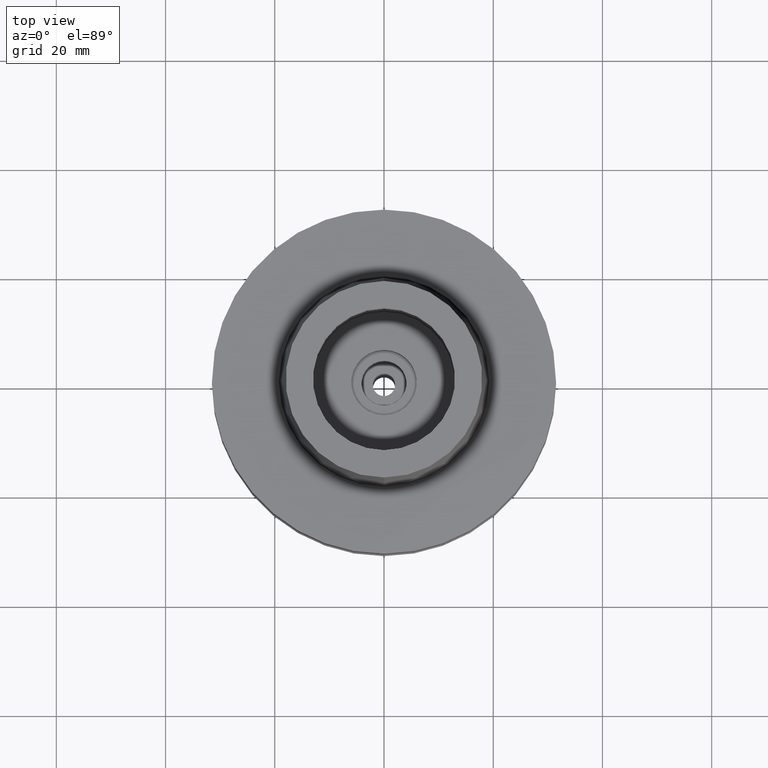
[diagram: clean part render]
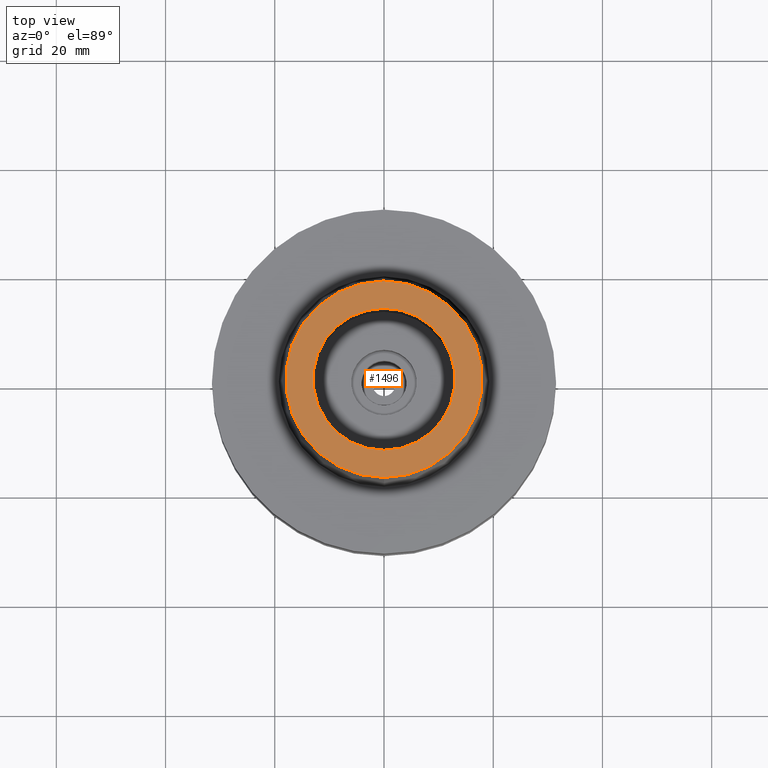
[diagram: same view with one face highlighted and labeled with its STEP entity id]
A machine part, top view. The second image highlights one B-rep face of the part: STEP entity #1496.
In plain terms, the highlighted planar face has unit normal (0, 0, -1).
Its self-contained STEP definition (entity closure, byte-faithful):
#7 = CARTESIAN_POINT ( 'NONE',  ( 0.0000000000000000000, 1.589591545292999879E-14, 25.00000000000000000 ) ) ;
#174 = VERTEX_POINT ( 'NONE', #1682 ) ;
#206 = AXIS2_PLACEMENT_3D ( 'NONE', #436, #1271, #1283 ) ;
#332 = CARTESIAN_POINT ( 'NONE',  ( 0.0000000000000000000, 1.377727649040999975E-14, 25.00000000000000000 ) ) ;
#387 = DIRECTION ( 'NONE',  ( 0.0000000000000000000, 1.000000000000000000, 0.0000000000000000000 ) ) ;
#397 = ORIENTED_EDGE ( 'NONE', *, *, #2379, .F. ) ;
#436 = CARTESIAN_POINT ( 'NONE',  ( 0.0000000000000000000, 1.530808498933999710E-14, 25.00000000000000000 ) ) ;
#441 = CARTESIAN_POINT ( 'NONE',  ( 0.0000000000000000000, -18.00000182882000033, 25.00000000000000000 ) ) ;
#465 = CIRCLE ( 'NONE', #646, 18.00000182882000033 ) ;
#552 = DIRECTION ( 'NONE',  ( 0.0000000000000000000, 0.0000000000000000000, -1.000000000000000000 ) ) ;
#564 = DIRECTION ( 'NONE',  ( 0.0000000000000000000, -1.000000000000000000, 0.0000000000000000000 ) ) ;
#645 = CIRCLE ( 'NONE', #2087, 13.00000000000000000 ) ;
#646 = AXIS2_PLACEMENT_3D ( 'NONE', #332, #2037, #564 ) ;
#752 = ORIENTED_EDGE ( 'NONE', *, *, #1343, .F. ) ;
#840 = DIRECTION ( 'NONE',  ( 0.0000000000000000000, 1.000000000000000000, 0.0000000000000000000 ) ) ;
#850 = DIRECTION ( 'NONE',  ( 0.0000000000000000000, 0.0000000000000000000, 1.000000000000000000 ) ) ;
#898 = FACE_OUTER_BOUND ( 'NONE', #2449, .T. ) ;
#977 = VERTEX_POINT ( 'NONE', #2647 ) ;
#981 = CARTESIAN_POINT ( 'NONE',  ( 0.0000000000000000000, -13.00000000000000000, 25.00000000000000000 ) ) ;
#1056 = FACE_BOUND ( 'NONE', #2616, .T. ) ;
#1061 = VERTEX_POINT ( 'NONE', #981 ) ;
#1254 = EDGE_CURVE ( 'NONE', #174, #2374, #1342, .T. ) ;
#1271 = DIRECTION ( 'NONE',  ( 0.0000000000000000000, 0.0000000000000000000, -1.000000000000000000 ) ) ;
#1283 = DIRECTION ( 'NONE',  ( 0.0000000000000000000, -1.000000000000000000, 0.0000000000000000000 ) ) ;
#1342 = CIRCLE ( 'NONE', #2393, 18.00000182882000033 ) ;
#1343 = EDGE_CURVE ( 'NONE', #2374, #174, #465, .T. ) ;
#1496 = ADVANCED_FACE ( 'NONE', ( #898, #1056 ), #2524, .F. ) ;
#1682 = CARTESIAN_POINT ( 'NONE',  ( 0.0000000000000000000, 18.00000182882000033, 25.00000000000000000 ) ) ;
#1735 = AXIS2_PLACEMENT_3D ( 'NONE', #7, #2091, #840 ) ;
#1767 = EDGE_CURVE ( 'NONE', #977, #1061, #2612, .T. ) ;
#1900 = CARTESIAN_POINT ( 'NONE',  ( 0.0000000000000000000, 1.589591545292999879E-14, 25.00000000000000000 ) ) ;
#1917 = ORIENTED_EDGE ( 'NONE', *, *, #1254, .F. ) ;
#2037 = DIRECTION ( 'NONE',  ( 0.0000000000000000000, 0.0000000000000000000, -1.000000000000000000 ) ) ;
#2087 = AXIS2_PLACEMENT_3D ( 'NONE', #1900, #850, #2113 ) ;
#2091 = DIRECTION ( 'NONE',  ( 0.0000000000000000000, 0.0000000000000000000, 1.000000000000000000 ) ) ;
#2113 = DIRECTION ( 'NONE',  ( 0.0000000000000000000, -1.000000000000000000, 0.0000000000000000000 ) ) ;
#2374 = VERTEX_POINT ( 'NONE', #441 ) ;
#2379 = EDGE_CURVE ( 'NONE', #1061, #977, #645, .T. ) ;
#2393 = AXIS2_PLACEMENT_3D ( 'NONE', #2639, #552, #387 ) ;
#2449 = EDGE_LOOP ( 'NONE', ( #1917, #752 ) ) ;
#2524 = PLANE ( 'NONE',  #206 ) ;
#2559 = ORIENTED_EDGE ( 'NONE', *, *, #1767, .F. ) ;
#2612 = CIRCLE ( 'NONE', #1735, 13.00000000000000000 ) ;
#2616 = EDGE_LOOP ( 'NONE', ( #2559, #397 ) ) ;
#2639 = CARTESIAN_POINT ( 'NONE',  ( 0.0000000000000000000, 1.377727649040999975E-14, 25.00000000000000000 ) ) ;
#2647 = CARTESIAN_POINT ( 'NONE',  ( 0.0000000000000000000, 13.00000000000000000, 25.00000000000000000 ) ) ;